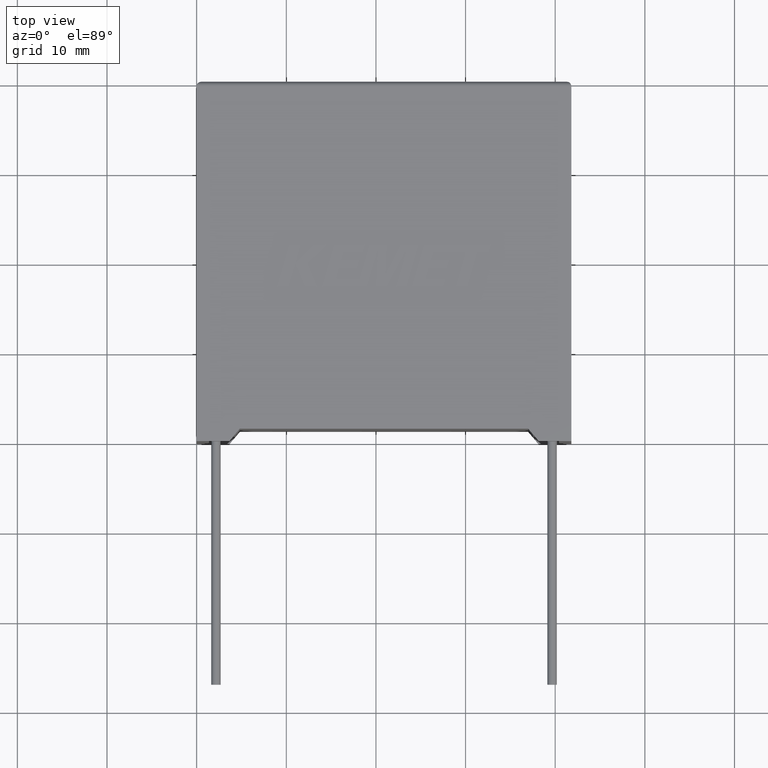
[diagram: clean part render]
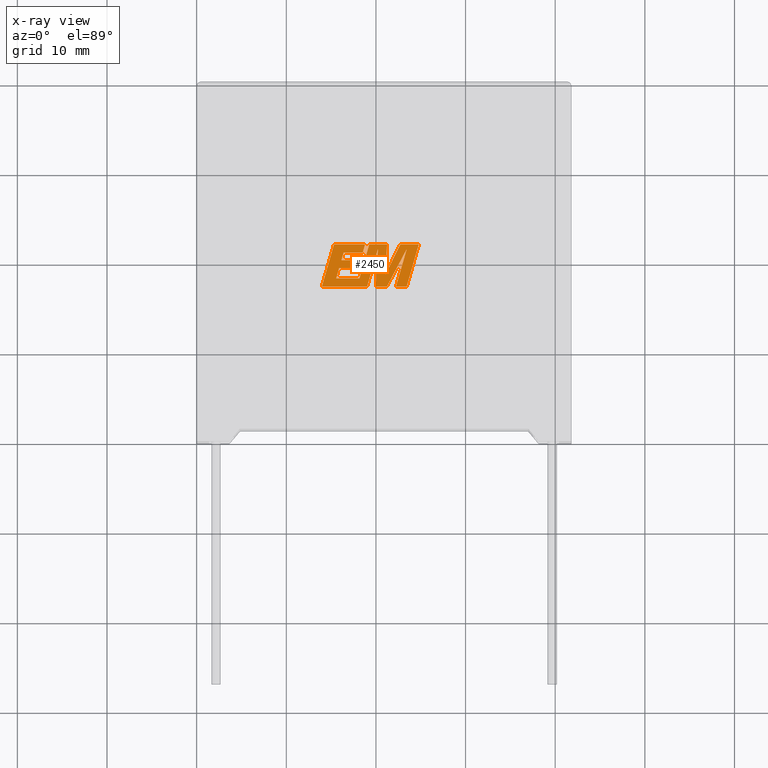
[diagram: x-ray — body ghosted, one internal face saturated and labeled with its STEP entity id]
A machine part, top view, then the same camera in x-ray: the body is ghosted and one INTERNAL B-rep face — a face not visible from any outside direction — is saturated and labeled: STEP entity #2450.
In plain terms, the highlighted planar face has unit normal (0, 0, -1).
Its self-contained STEP definition (entity closure, byte-faithful):
#6 = CARTESIAN_POINT ( 'NONE',  ( 21.23193201370533245, 17.25502999999985221, 20.19999999999999929 ) ) ;
#22 = DIRECTION ( 'NONE',  ( 1.000000000000000000, 0.000000000000000000, 0.000000000000000000 ) ) ;
#41 = CARTESIAN_POINT ( 'NONE',  ( 19.02058908988481178, 17.25502999999985221, 20.19999999999999929 ) ) ;
#87 = PLANE ( 'NONE',  #687 ) ;
#108 = VECTOR ( 'NONE', #1184, 1000.000000000000000 ) ;
#118 = CARTESIAN_POINT ( 'NONE',  ( 19.02058908988481178, 17.25502999999985221, 20.19999999999999929 ) ) ;
#145 = CARTESIAN_POINT ( 'NONE',  ( 23.42996431446111316, 17.25502999999985221, 20.19999999999999929 ) ) ;
#149 = CARTESIAN_POINT ( 'NONE',  ( 24.77605979522625290, 21.93698116021452904, 20.19999999999999929 ) ) ;
#191 = ORIENTED_EDGE ( 'NONE', *, *, #845, .F. ) ;
#193 = LINE ( 'NONE', #2938, #1883 ) ;
#216 = LINE ( 'NONE', #149, #1688 ) ;
#226 = VECTOR ( 'NONE', #2760, 1000.000000000000114 ) ;
#235 = EDGE_CURVE ( 'NONE', #439, #2454, #449, .T. ) ;
#243 = VECTOR ( 'NONE', #2041, 1000.000000000000000 ) ;
#252 = EDGE_CURVE ( 'NONE', #1341, #2686, #2580, .T. ) ;
#257 = ORIENTED_EDGE ( 'NONE', *, *, #1635, .F. ) ;
#265 = CARTESIAN_POINT ( 'NONE',  ( 18.52971893973640505, 21.04579579713520587, 20.19999999999999929 ) ) ;
#274 = VERTEX_POINT ( 'NONE', #801 ) ;
#282 = EDGE_CURVE ( 'NONE', #2954, #2461, #1780, .T. ) ;
#283 = CARTESIAN_POINT ( 'NONE',  ( 15.56468155929728248, 18.14577404831258178, 20.19999999999999929 ) ) ;
#301 = LINE ( 'NONE', #283, #865 ) ;
#304 = DIRECTION ( 'NONE',  ( 0.000000000000000000, 0.000000000000000000, -1.000000000000000000 ) ) ;
#309 = CARTESIAN_POINT ( 'NONE',  ( 22.24020815187459732, 17.25502999999985221, 20.19999999999999929 ) ) ;
#360 = ORIENTED_EDGE ( 'NONE', *, *, #713, .F. ) ;
#416 = VERTEX_POINT ( 'NONE', #145 ) ;
#428 = ORIENTED_EDGE ( 'NONE', *, *, #2141, .F. ) ;
#439 = VERTEX_POINT ( 'NONE', #2926 ) ;
#449 = LINE ( 'NONE', #1160, #108 ) ;
#468 = VECTOR ( 'NONE', #2396, 1000.000000000000227 ) ;
#476 = EDGE_CURVE ( 'NONE', #1696, #2954, #2663, .T. ) ;
#524 = ORIENTED_EDGE ( 'NONE', *, *, #2770, .F. ) ;
#540 = VECTOR ( 'NONE', #22, 1000.000000000000000 ) ;
#541 = DIRECTION ( 'NONE',  ( -0.4443210308329518243, -0.8958676361826801715, 0.000000000000000000 ) ) ;
#552 = EDGE_LOOP ( 'NONE', ( #2317, #968, #2155, #428, #2933, #644, #1665, #257, #1182, #2238, #191, #999, #2788, #2552, #2349, #875, #1329, #360, #764, #524, #1143, #2312, #2855 ) ) ;
#557 = VERTEX_POINT ( 'NONE', #1324 ) ;
#570 = CARTESIAN_POINT ( 'NONE',  ( 15.32396570327697027, 21.93698116021452904, 20.19999999999999929 ) ) ;
#578 = EDGE_CURVE ( 'NONE', #2830, #706, #611, .T. ) ;
#587 = DIRECTION ( 'NONE',  ( 0.2793947940878294678, 0.9601763114327593884, 0.000000000000000000 ) ) ;
#611 = LINE ( 'NONE', #1797, #1403 ) ;
#644 = ORIENTED_EDGE ( 'NONE', *, *, #2945, .F. ) ;
#687 = AXIS2_PLACEMENT_3D ( 'NONE', #2634, #304, #2392 ) ;
#700 = DIRECTION ( 'NONE',  ( -1.000000000000000000, 0.000000000000000000, 0.000000000000000000 ) ) ;
#706 = VERTEX_POINT ( 'NONE', #953 ) ;
#713 = EDGE_CURVE ( 'NONE', #706, #2211, #301, .T. ) ;
#719 = DIRECTION ( 'NONE',  ( 0.2740217765954066076, 0.9617234872620595842, 0.000000000000000000 ) ) ;
#764 = ORIENTED_EDGE ( 'NONE', *, *, #578, .F. ) ;
#766 = LINE ( 'NONE', #41, #468 ) ;
#768 = VECTOR ( 'NONE', #1487, 1000.000000000000000 ) ;
#787 = EDGE_CURVE ( 'NONE', #274, #1505, #2111, .T. ) ;
#801 = CARTESIAN_POINT ( 'NONE',  ( 21.23193201370533245, 17.25502999999985221, 20.19999999999999929 ) ) ;
#818 = VECTOR ( 'NONE', #895, 1000.000000000000000 ) ;
#844 = CARTESIAN_POINT ( 'NONE',  ( 18.78283431738138631, 21.93698116021452904, 20.19999999999999929 ) ) ;
#845 = EDGE_CURVE ( 'NONE', #1697, #1696, #1463, .T. ) ;
#848 = DIRECTION ( 'NONE',  ( -1.000000000000000000, 0.000000000000000000, 0.000000000000000000 ) ) ;
#865 = VECTOR ( 'NONE', #719, 1000.000000000000227 ) ;
#868 = EDGE_CURVE ( 'NONE', #1653, #439, #2915, .T. ) ;
#874 = EDGE_CURVE ( 'NONE', #1715, #1726, #1069, .T. ) ;
#875 = ORIENTED_EDGE ( 'NONE', *, *, #2581, .F. ) ;
#882 = LINE ( 'NONE', #1115, #818 ) ;
#895 = DIRECTION ( 'NONE',  ( -1.000000000000000000, 0.000000000000000000, 0.000000000000000000 ) ) ;
#953 = CARTESIAN_POINT ( 'NONE',  ( 15.56468155929728248, 18.14577404831258178, 20.19999999999999929 ) ) ;
#968 = ORIENTED_EDGE ( 'NONE', *, *, #2134, .F. ) ;
#999 = ORIENTED_EDGE ( 'NONE', *, *, #1858, .F. ) ;
#1032 = VECTOR ( 'NONE', #1412, 1000.000000000000114 ) ;
#1048 = CARTESIAN_POINT ( 'NONE',  ( 18.18721596238323102, 17.25502999999985221, 20.19999999999999929 ) ) ;
#1062 = VECTOR ( 'NONE', #1510, 1000.000000000000114 ) ;
#1069 = LINE ( 'NONE', #2204, #1693 ) ;
#1102 = LINE ( 'NONE', #1831, #226 ) ;
#1115 = CARTESIAN_POINT ( 'NONE',  ( 21.24370812317940249, 21.93698116021452904, 20.19999999999999929 ) ) ;
#1127 = LINE ( 'NONE', #2285, #2791 ) ;
#1143 = ORIENTED_EDGE ( 'NONE', *, *, #1442, .F. ) ;
#1148 = CARTESIAN_POINT ( 'NONE',  ( 23.44294751043418401, 21.44332075805291282, 20.19999999999999929 ) ) ;
#1160 = CARTESIAN_POINT ( 'NONE',  ( 16.39657414692667103, 21.04579579713520587, 20.19999999999999929 ) ) ;
#1173 = CARTESIAN_POINT ( 'NONE',  ( 18.15272223384586070, 20.17495362160797967, 20.19999999999999929 ) ) ;
#1182 = ORIENTED_EDGE ( 'NONE', *, *, #282, .F. ) ;
#1184 = DIRECTION ( 'NONE',  ( 1.000000000000000000, 0.000000000000000000, 0.000000000000000000 ) ) ;
#1216 = DIRECTION ( 'NONE',  ( 0.2732148821746286371, 0.9619530280415482526, 0.000000000000000000 ) ) ;
#1217 = CARTESIAN_POINT ( 'NONE',  ( 19.24983076552901906, 21.93698116021452904, 20.19999999999999929 ) ) ;
#1247 = EDGE_CURVE ( 'NONE', #557, #416, #1280, .T. ) ;
#1254 = VECTOR ( 'NONE', #2937, 1000.000000000000227 ) ;
#1280 = LINE ( 'NONE', #309, #768 ) ;
#1324 = CARTESIAN_POINT ( 'NONE',  ( 22.24020815187459732, 17.25502999999985221, 20.19999999999999929 ) ) ;
#1329 = ORIENTED_EDGE ( 'NONE', *, *, #1667, .F. ) ;
#1341 = VERTEX_POINT ( 'NONE', #2772 ) ;
#1374 = CARTESIAN_POINT ( 'NONE',  ( 18.15272223384586070, 20.17495362160797967, 20.19999999999999929 ) ) ;
#1376 = VERTEX_POINT ( 'NONE', #2701 ) ;
#1403 = VECTOR ( 'NONE', #848, 1000.000000000000000 ) ;
#1412 = DIRECTION ( 'NONE',  ( -0.2762517575166416051, -0.9610853065513833560, 0.000000000000000000 ) ) ;
#1436 = LINE ( 'NONE', #1217, #1032 ) ;
#1442 = EDGE_CURVE ( 'NONE', #1376, #1678, #882, .T. ) ;
#1463 = LINE ( 'NONE', #2389, #2418 ) ;
#1467 = CARTESIAN_POINT ( 'NONE',  ( 17.90550054384709000, 19.30942145934523424, 20.19999999999999929 ) ) ;
#1483 = FACE_OUTER_BOUND ( 'NONE', #552, .T. ) ;
#1487 = DIRECTION ( 'NONE',  ( 1.000000000000000000, 0.000000000000000000, 0.000000000000000000 ) ) ;
#1505 = VERTEX_POINT ( 'NONE', #2820 ) ;
#1510 = DIRECTION ( 'NONE',  ( -0.2765379750249963298, -0.9610029908221277006, 0.000000000000000000 ) ) ;
#1578 = CARTESIAN_POINT ( 'NONE',  ( 15.32396570327697027, 21.93698116021452904, 20.19999999999999929 ) ) ;
#1586 = DIRECTION ( 'NONE',  ( 0.2746459304916892830, 0.9615454294334481178, 0.000000000000000000 ) ) ;
#1635 = EDGE_CURVE ( 'NONE', #2461, #1341, #766, .T. ) ;
#1643 = CARTESIAN_POINT ( 'NONE',  ( 19.98376570519902629, 17.25502999999985221, 20.19999999999999929 ) ) ;
#1653 = VERTEX_POINT ( 'NONE', #2673 ) ;
#1657 = LINE ( 'NONE', #1643, #540 ) ;
#1665 = ORIENTED_EDGE ( 'NONE', *, *, #252, .F. ) ;
#1667 = EDGE_CURVE ( 'NONE', #2211, #2489, #193, .T. ) ;
#1678 = VERTEX_POINT ( 'NONE', #2977 ) ;
#1688 = VECTOR ( 'NONE', #1806, 1000.000000000000000 ) ;
#1692 = CARTESIAN_POINT ( 'NONE',  ( 21.06365366960111629, 18.59213509566545497, 20.19999999999999929 ) ) ;
#1693 = VECTOR ( 'NONE', #541, 1000.000000000000227 ) ;
#1696 = VERTEX_POINT ( 'NONE', #1578 ) ;
#1697 = VERTEX_POINT ( 'NONE', #844 ) ;
#1706 = CARTESIAN_POINT ( 'NONE',  ( 18.16009646136971156, 18.14577404831258178, 20.19999999999999929 ) ) ;
#1715 = VERTEX_POINT ( 'NONE', #1760 ) ;
#1726 = VERTEX_POINT ( 'NONE', #2241 ) ;
#1746 = CARTESIAN_POINT ( 'NONE',  ( 20.21740628887921432, 21.42324805376149399, 20.19999999999999929 ) ) ;
#1760 = CARTESIAN_POINT ( 'NONE',  ( 22.72258785960118033, 21.93698116021452904, 20.19999999999999929 ) ) ;
#1780 = LINE ( 'NONE', #1048, #1881 ) ;
#1797 = CARTESIAN_POINT ( 'NONE',  ( 18.16009646136971156, 18.14577404831258178, 20.19999999999999929 ) ) ;
#1806 = DIRECTION ( 'NONE',  ( -1.000000000000000000, 0.000000000000000000, 0.000000000000000000 ) ) ;
#1808 = LINE ( 'NONE', #1173, #243 ) ;
#1825 = DIRECTION ( 'NONE',  ( 1.000000000000000000, 0.000000000000000000, 0.000000000000000000 ) ) ;
#1831 = CARTESIAN_POINT ( 'NONE',  ( 23.42996431446111316, 17.25502999999985221, 20.19999999999999929 ) ) ;
#1838 = CARTESIAN_POINT ( 'NONE',  ( 24.77605979522625290, 21.93698116021452904, 20.19999999999999929 ) ) ;
#1858 = EDGE_CURVE ( 'NONE', #2454, #1697, #2360, .T. ) ;
#1881 = VECTOR ( 'NONE', #2247, 1000.000000000000000 ) ;
#1883 = VECTOR ( 'NONE', #1825, 1000.000000000000000 ) ;
#1899 = VERTEX_POINT ( 'NONE', #1838 ) ;
#2041 = DIRECTION ( 'NONE',  ( -1.000000000000000000, 0.000000000000000000, 0.000000000000000000 ) ) ;
#2066 = DIRECTION ( 'NONE',  ( -0.2760118818968580467, -0.9611542233438683525, 0.000000000000000000 ) ) ;
#2076 = VECTOR ( 'NONE', #2066, 1000.000000000000227 ) ;
#2096 = VECTOR ( 'NONE', #2433, 1000.000000000000000 ) ;
#2098 = CARTESIAN_POINT ( 'NONE',  ( 13.97668863403073836, 17.25502999999985221, 20.19999999999999929 ) ) ;
#2111 = LINE ( 'NONE', #6, #2918 ) ;
#2128 = EDGE_CURVE ( 'NONE', #1899, #1715, #216, .T. ) ;
#2134 = EDGE_CURVE ( 'NONE', #416, #1899, #1102, .T. ) ;
#2141 = EDGE_CURVE ( 'NONE', #1505, #557, #2726, .T. ) ;
#2149 = CARTESIAN_POINT ( 'NONE',  ( 19.98376570519902629, 17.25502999999985221, 20.19999999999999929 ) ) ;
#2155 = ORIENTED_EDGE ( 'NONE', *, *, #1247, .F. ) ;
#2158 = DIRECTION ( 'NONE',  ( 0.4668459304955080436, 0.8843386665637680277, 0.000000000000000000 ) ) ;
#2204 = CARTESIAN_POINT ( 'NONE',  ( 22.72258785960118033, 21.93698116021452904, 20.19999999999999929 ) ) ;
#2211 = VERTEX_POINT ( 'NONE', #2556 ) ;
#2216 = LINE ( 'NONE', #1692, #2096 ) ;
#2238 = ORIENTED_EDGE ( 'NONE', *, *, #476, .F. ) ;
#2241 = CARTESIAN_POINT ( 'NONE',  ( 21.06365366960111629, 18.59213509566545497, 20.19999999999999929 ) ) ;
#2247 = DIRECTION ( 'NONE',  ( 1.000000000000000000, 0.000000000000000000, 0.000000000000000000 ) ) ;
#2285 = CARTESIAN_POINT ( 'NONE',  ( 17.90550054384709000, 19.30942145934523424, 20.19999999999999929 ) ) ;
#2312 = ORIENTED_EDGE ( 'NONE', *, *, #2815, .F. ) ;
#2317 = ORIENTED_EDGE ( 'NONE', *, *, #2128, .F. ) ;
#2337 = VERTEX_POINT ( 'NONE', #1374 ) ;
#2349 = ORIENTED_EDGE ( 'NONE', *, *, #2371, .F. ) ;
#2360 = LINE ( 'NONE', #265, #2612 ) ;
#2371 = EDGE_CURVE ( 'NONE', #2337, #1653, #1808, .T. ) ;
#2389 = CARTESIAN_POINT ( 'NONE',  ( 18.78283431738138631, 21.93698116021452904, 20.19999999999999929 ) ) ;
#2392 = DIRECTION ( 'NONE',  ( -1.000000000000000000, 0.000000000000000000, 0.000000000000000000 ) ) ;
#2396 = DIRECTION ( 'NONE',  ( 0.2759782365590697228, 0.9611638845408965182, 0.000000000000000000 ) ) ;
#2418 = VECTOR ( 'NONE', #700, 1000.000000000000000 ) ;
#2433 = DIRECTION ( 'NONE',  ( 0.05375259206908577364, 0.9985542843760946141, 0.000000000000000000 ) ) ;
#2450 = ADVANCED_FACE ( 'NONE', ( #1483 ), #87, .T. ) ;
#2454 = VERTEX_POINT ( 'NONE', #2932 ) ;
#2461 = VERTEX_POINT ( 'NONE', #118 ) ;
#2489 = VERTEX_POINT ( 'NONE', #1467 ) ;
#2552 = ORIENTED_EDGE ( 'NONE', *, *, #868, .F. ) ;
#2556 = CARTESIAN_POINT ( 'NONE',  ( 15.89623707928316776, 19.30942145934523424, 20.19999999999999929 ) ) ;
#2580 = LINE ( 'NONE', #1746, #1254 ) ;
#2581 = EDGE_CURVE ( 'NONE', #2489, #2337, #1127, .T. ) ;
#2612 = VECTOR ( 'NONE', #1216, 1000.000000000000114 ) ;
#2626 = CARTESIAN_POINT ( 'NONE',  ( 16.14317405007220430, 20.17495362160797967, 20.19999999999999929 ) ) ;
#2634 = CARTESIAN_POINT ( 'NONE',  ( -0.5081854015330893315, 2.101076137004668443, 20.19999999999999929 ) ) ;
#2663 = LINE ( 'NONE', #570, #1062 ) ;
#2666 = VECTOR ( 'NONE', #587, 1000.000000000000114 ) ;
#2673 = CARTESIAN_POINT ( 'NONE',  ( 16.14317405007220430, 20.17495362160797967, 20.19999999999999929 ) ) ;
#2686 = VERTEX_POINT ( 'NONE', #2149 ) ;
#2701 = CARTESIAN_POINT ( 'NONE',  ( 21.24370812317940249, 21.93698116021452904, 20.19999999999999929 ) ) ;
#2726 = LINE ( 'NONE', #1148, #2076 ) ;
#2760 = DIRECTION ( 'NONE',  ( 0.2763139702539113007, 0.9610674221107073922, 0.000000000000000000 ) ) ;
#2770 = EDGE_CURVE ( 'NONE', #1678, #2830, #1436, .T. ) ;
#2772 = CARTESIAN_POINT ( 'NONE',  ( 20.21740628887921432, 21.42324805376149399, 20.19999999999999929 ) ) ;
#2788 = ORIENTED_EDGE ( 'NONE', *, *, #235, .F. ) ;
#2791 = VECTOR ( 'NONE', #1586, 1000.000000000000000 ) ;
#2815 = EDGE_CURVE ( 'NONE', #1726, #1376, #2216, .T. ) ;
#2820 = CARTESIAN_POINT ( 'NONE',  ( 23.44294751043418401, 21.44332075805291282, 20.19999999999999929 ) ) ;
#2830 = VERTEX_POINT ( 'NONE', #1706 ) ;
#2855 = ORIENTED_EDGE ( 'NONE', *, *, #874, .F. ) ;
#2915 = LINE ( 'NONE', #2626, #2666 ) ;
#2918 = VECTOR ( 'NONE', #2158, 1000.000000000000000 ) ;
#2926 = CARTESIAN_POINT ( 'NONE',  ( 16.39657414692667103, 21.04579579713520587, 20.19999999999999929 ) ) ;
#2932 = CARTESIAN_POINT ( 'NONE',  ( 18.52971893973640505, 21.04579579713520587, 20.19999999999999929 ) ) ;
#2933 = ORIENTED_EDGE ( 'NONE', *, *, #787, .F. ) ;
#2937 = DIRECTION ( 'NONE',  ( -0.05596501978069369498, -0.9984327301130239141, 0.000000000000000000 ) ) ;
#2938 = CARTESIAN_POINT ( 'NONE',  ( 15.89623707928316776, 19.30942145934523424, 20.19999999999999929 ) ) ;
#2945 = EDGE_CURVE ( 'NONE', #2686, #274, #1657, .T. ) ;
#2954 = VERTEX_POINT ( 'NONE', #2098 ) ;
#2977 = CARTESIAN_POINT ( 'NONE',  ( 19.24983076552901906, 21.93698116021452904, 20.19999999999999929 ) ) ;